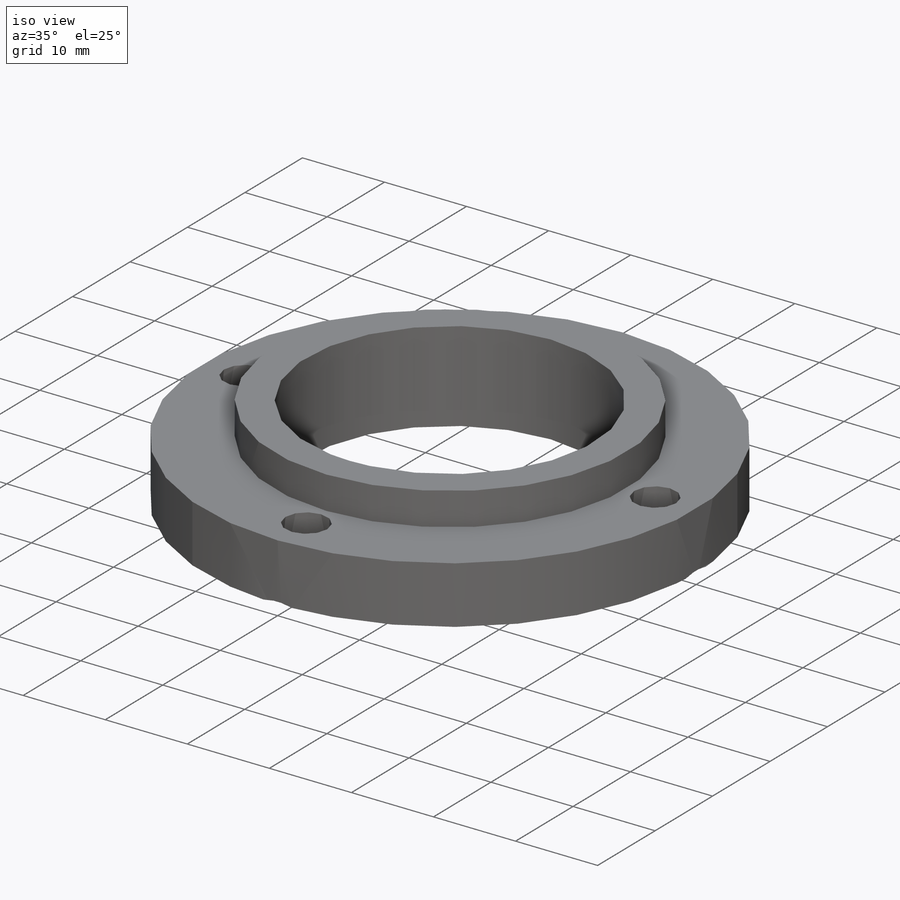
[diagram: iso view]
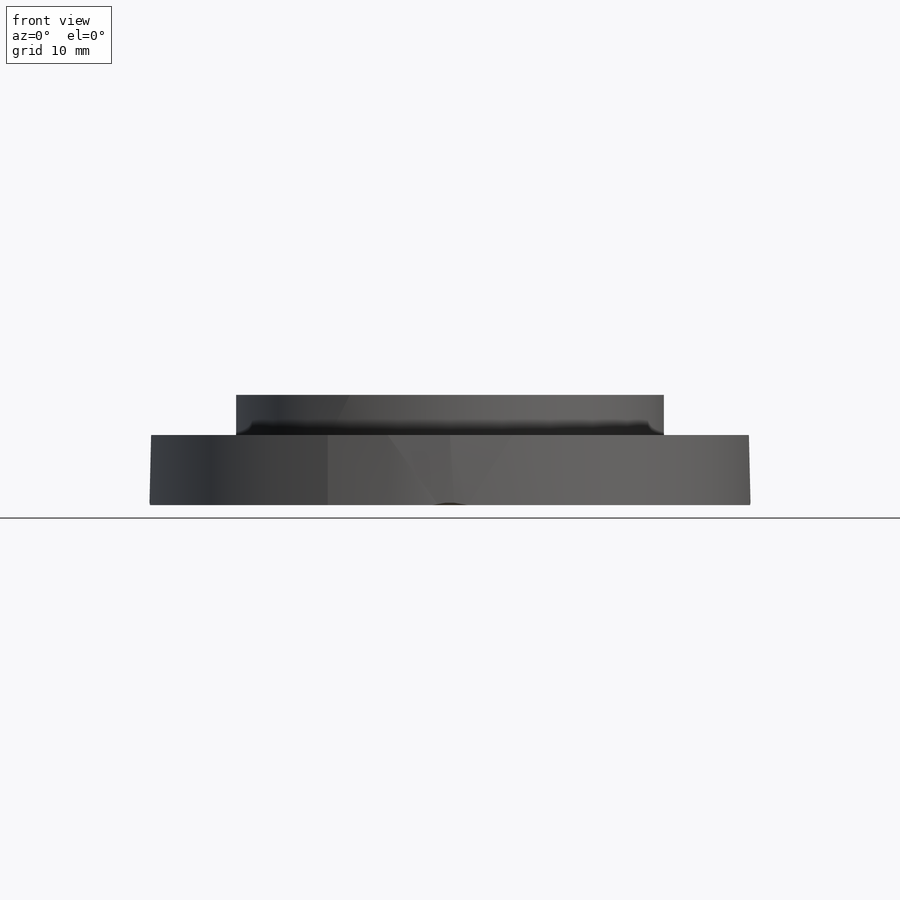
[diagram: front view]
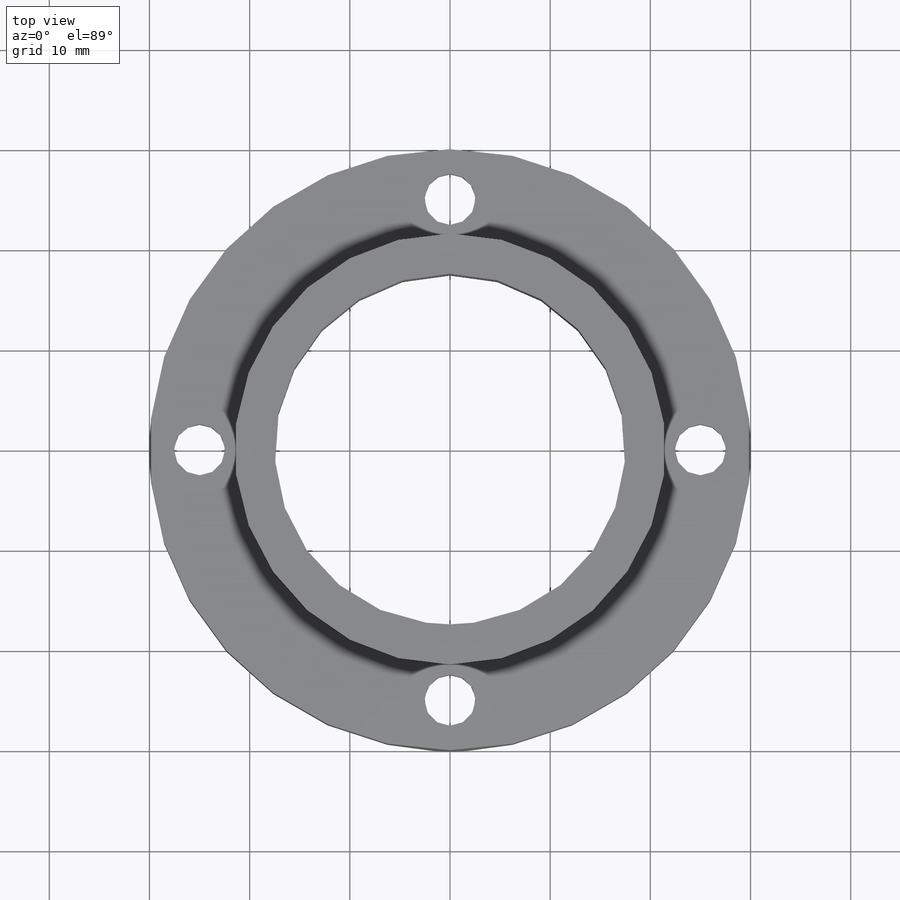
[diagram: top view]
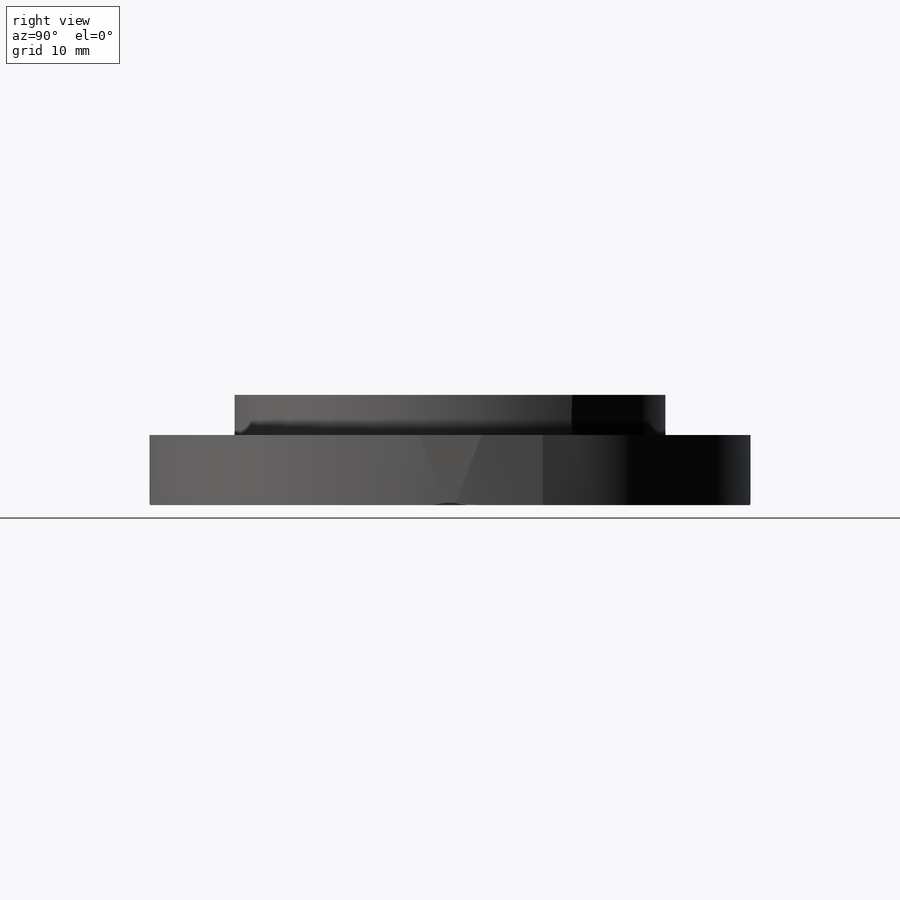
[diagram: right view]
SOLIDWORKS PART (.sldprt)
format: sldprt  version: not decoded by parser v0  size: 203,776 bytes
history: native  units: mm
features: sketch x3, extrude x2, material x1, cut_extrude x1, chamfer x1, pattern_circular x1 (+14 scaffold rows collapsed)
feature tree (23):
  scaffold x14  (default folders/planes/origin — collapsed)
  material  "201 Annealed Stainless Steel (SS)"
  sketch  "Sketch1"  dims[D1=60.0mm D2=35.0mm]
  extrude  "Boss-Extrude1"  Depth=7mm
  sketch  "Sketch2"  dims[D1=4.0mm]
  extrude  "Boss-Extrude2"  Depth=4mm
  sketch  "Sketch4"  dims[D1=5.1mm D2=25.0mm]
  cut_extrude  "Cut-Extrude1"  [1 undecoded]
  chamfer  "Chamfer1"  Distance=2.7mm Angle=45deg
  pattern_circular  "CirPattern1"  Count=4 Angle=90deg
decode coverage: 7 of 8 modeling features carry decoded parameters
note: 1 parameter value undecoded
note: suppression state not decoded; provenance and decode notes live in map.json
